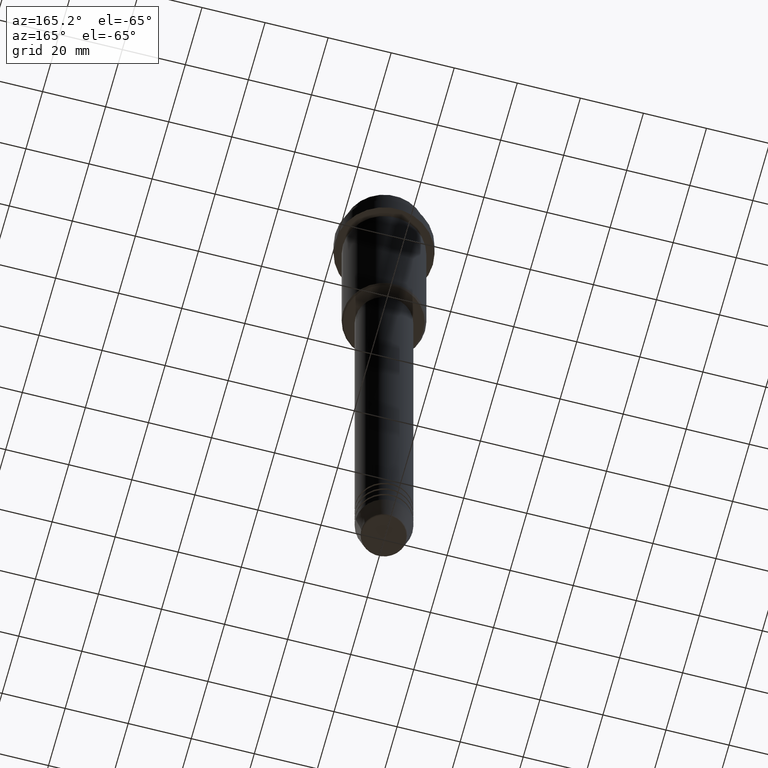
[diagram: clean part render]
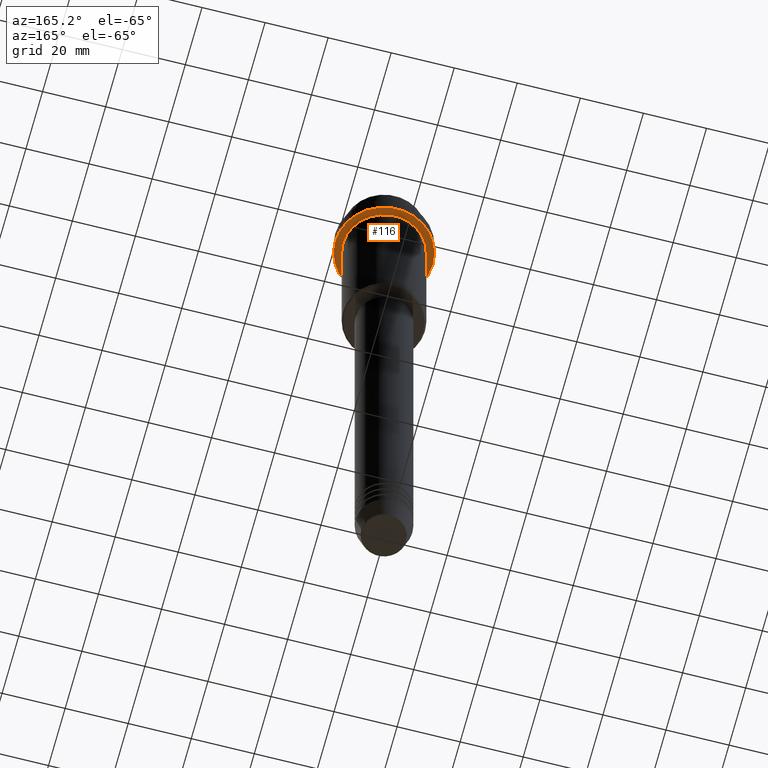
[diagram: same view with one face highlighted and labeled with its STEP entity id]
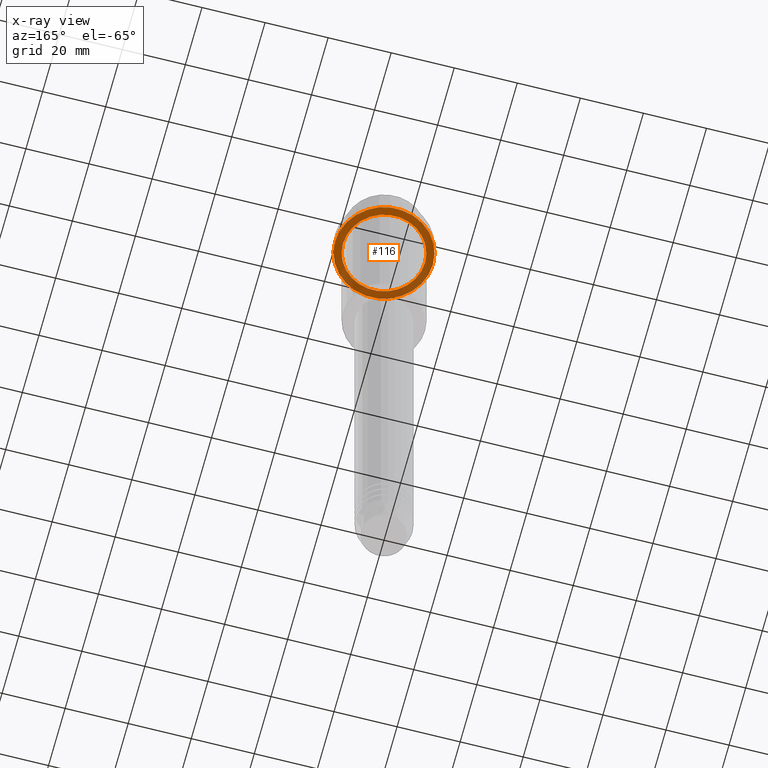
[diagram: x-ray of the same camera — body ghosted, the highlighted face saturated]
A machine part, auxiliary view. The second image highlights one B-rep face of the part: STEP entity #116.
The next image is the same camera in x-ray: the body ghosted, the highlighted face saturated — about 35% of this face is hidden behind the body in this view.
In plain terms, the highlighted planar face has unit normal (0, 0, -1).
Its self-contained STEP definition (entity closure, byte-faithful):
#60 = VERTEX_POINT ( 'NONE', #1303 ) ;
#116 = ADVANCED_FACE ( 'NONE', ( #761, #657 ), #1416, .T. ) ;
#141 = AXIS2_PLACEMENT_3D ( 'NONE', #531, #752, #1202 ) ;
#142 = EDGE_CURVE ( 'NONE', #688, #777, #430, .T. ) ;
#330 = CARTESIAN_POINT ( 'NONE',  ( 15.50000000000000000, 0.000000000000000000, -15.00000000000000000 ) ) ;
#357 = DIRECTION ( 'NONE',  ( -0.000000000000000000, -0.000000000000000000, 1.000000000000000000 ) ) ;
#360 = EDGE_LOOP ( 'NONE', ( #1109, #940 ) ) ;
#397 = DIRECTION ( 'NONE',  ( -1.000000000000000000, 0.000000000000000000, -0.000000000000000000 ) ) ;
#415 = DIRECTION ( 'NONE',  ( -0.000000000000000000, -0.000000000000000000, 1.000000000000000000 ) ) ;
#417 = DIRECTION ( 'NONE',  ( 0.000000000000000000, 0.000000000000000000, -1.000000000000000000 ) ) ;
#430 = CIRCLE ( 'NONE', #141, 12.99999999999999645 ) ;
#474 = EDGE_LOOP ( 'NONE', ( #1058, #516 ) ) ;
#501 = AXIS2_PLACEMENT_3D ( 'NONE', #589, #357, #594 ) ;
#516 = ORIENTED_EDGE ( 'NONE', *, *, #142, .T. ) ;
#531 = CARTESIAN_POINT ( 'NONE',  ( 0.000000000000000000, 0.000000000000000000, -15.00000000000000000 ) ) ;
#589 = CARTESIAN_POINT ( 'NONE',  ( 0.000000000000000000, 0.000000000000000000, -15.00000000000000000 ) ) ;
#594 = DIRECTION ( 'NONE',  ( 1.000000000000000000, 0.000000000000000000, 0.000000000000000000 ) ) ;
#602 = CARTESIAN_POINT ( 'NONE',  ( 0.000000000000000000, 0.000000000000000000, -15.00000000000000000 ) ) ;
#657 = FACE_OUTER_BOUND ( 'NONE', #360, .T. ) ;
#669 = CIRCLE ( 'NONE', #1125, 15.50000000000000000 ) ;
#688 = VERTEX_POINT ( 'NONE', #965 ) ;
#693 = VERTEX_POINT ( 'NONE', #330 ) ;
#741 = CARTESIAN_POINT ( 'NONE',  ( 0.000000000000000000, 0.000000000000000000, -15.00000000000000000 ) ) ;
#747 = EDGE_CURVE ( 'NONE', #693, #60, #1169, .T. ) ;
#752 = DIRECTION ( 'NONE',  ( -0.000000000000000000, -0.000000000000000000, 1.000000000000000000 ) ) ;
#761 = FACE_BOUND ( 'NONE', #474, .T. ) ;
#773 = DIRECTION ( 'NONE',  ( -1.000000000000000000, 0.000000000000000000, 0.000000000000000000 ) ) ;
#777 = VERTEX_POINT ( 'NONE', #809 ) ;
#809 = CARTESIAN_POINT ( 'NONE',  ( -12.99999999999999645, 0.000000000000000000, -15.00000000000000000 ) ) ;
#844 = AXIS2_PLACEMENT_3D ( 'NONE', #1409, #417, #397 ) ;
#904 = EDGE_CURVE ( 'NONE', #60, #693, #669, .T. ) ;
#921 = AXIS2_PLACEMENT_3D ( 'NONE', #741, #415, #773 ) ;
#931 = DIRECTION ( 'NONE',  ( 1.000000000000000000, 0.000000000000000000, 0.000000000000000000 ) ) ;
#940 = ORIENTED_EDGE ( 'NONE', *, *, #904, .F. ) ;
#965 = CARTESIAN_POINT ( 'NONE',  ( 12.99999999999999645, 1.592040838891558701E-15, -15.00000000000000000 ) ) ;
#1058 = ORIENTED_EDGE ( 'NONE', *, *, #1092, .T. ) ;
#1092 = EDGE_CURVE ( 'NONE', #777, #688, #1343, .T. ) ;
#1109 = ORIENTED_EDGE ( 'NONE', *, *, #747, .F. ) ;
#1125 = AXIS2_PLACEMENT_3D ( 'NONE', #602, #1285, #931 ) ;
#1169 = CIRCLE ( 'NONE', #501, 15.50000000000000000 ) ;
#1202 = DIRECTION ( 'NONE',  ( -1.000000000000000000, 0.000000000000000000, 0.000000000000000000 ) ) ;
#1285 = DIRECTION ( 'NONE',  ( -0.000000000000000000, -0.000000000000000000, 1.000000000000000000 ) ) ;
#1303 = CARTESIAN_POINT ( 'NONE',  ( -15.50000000000000000, 1.898202538678397557E-15, -15.00000000000000000 ) ) ;
#1343 = CIRCLE ( 'NONE', #921, 12.99999999999999645 ) ;
#1409 = CARTESIAN_POINT ( 'NONE',  ( 0.000000000000000000, 15.50000000000000000, -15.00000000000000000 ) ) ;
#1416 = PLANE ( 'NONE',  #844 ) ;